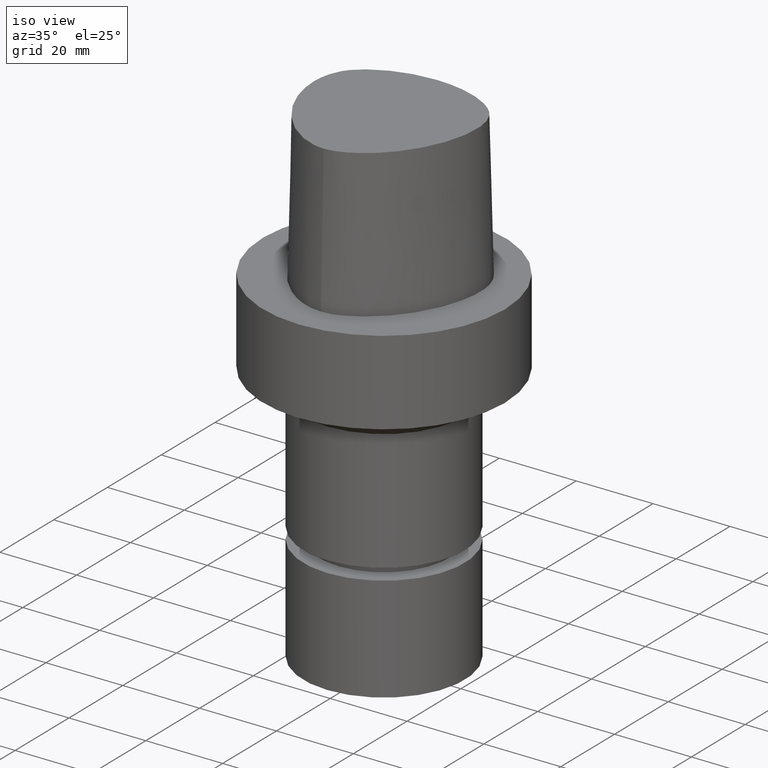
[diagram: clean part render]
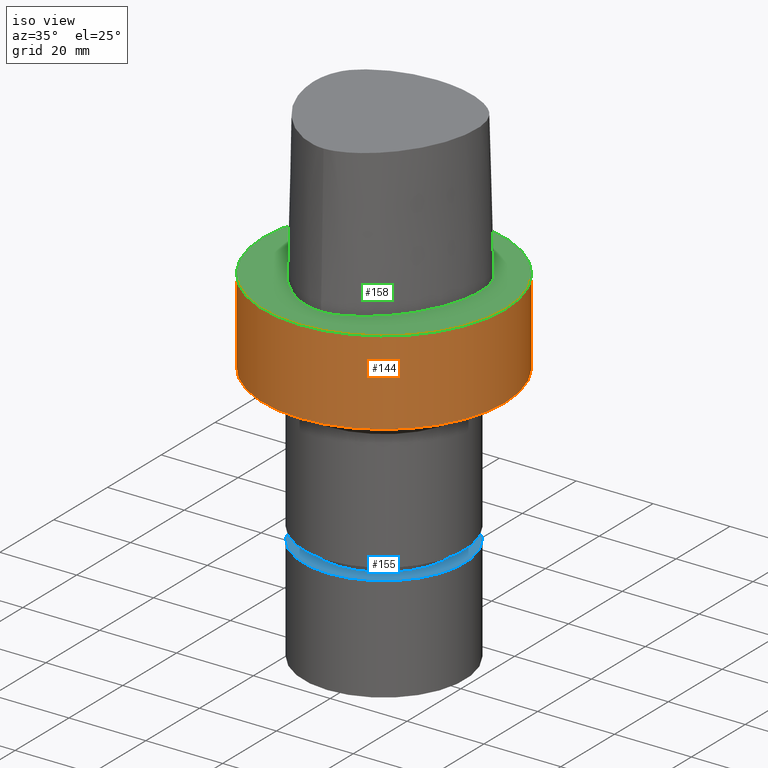
[diagram: same view with three faces highlighted in distinct colors, each labeled with its STEP entity id]
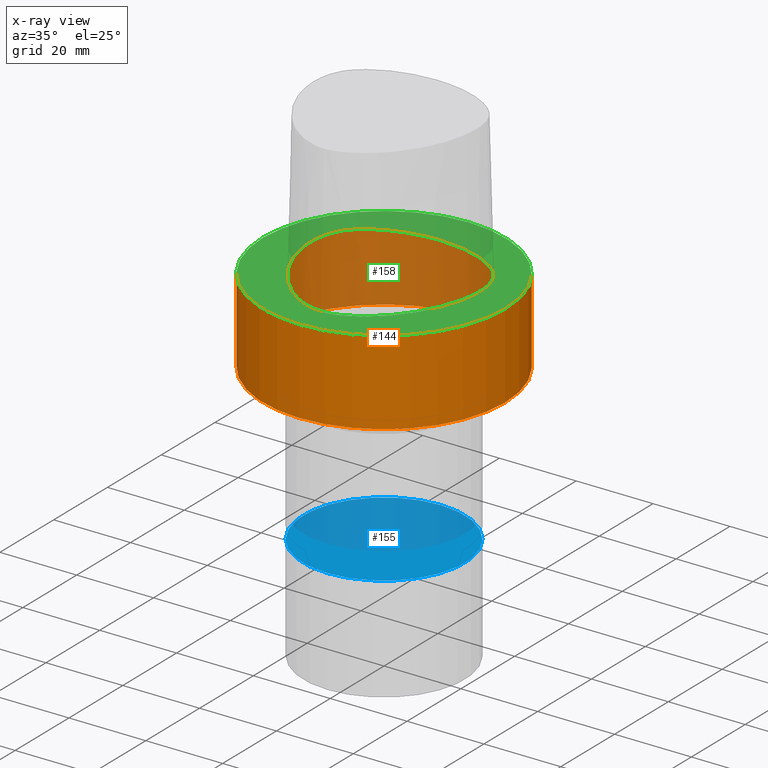
[diagram: x-ray of the same camera — body ghosted, the three highlighted faces saturated]
A machine part, iso view with three faces highlighted in distinct colors.
The next image is the same camera in x-ray (body ghosted, the three faces saturated) — at least one of them is partly hidden behind the body in this view.
Their STEP definitions:

[orange] entity #144 — the highlighted cylindrical surface (bore or boss wall) has radius 31.5 mm, axis along (0, 0, -1).
#113=EDGE_CURVE('Unnamed[1]',#253,#253,#254,.T.);
#144=ADVANCED_FACE('Unnamed[1]',(#294,#295),#296,.T.);
#168=EDGE_CURVE('Unnamed[1]',#330,#330,#331,.T.);
#253=VERTEX_POINT('',#597);
#254=CIRCLE('',#598,31.5);
#294=FACE_BOUND('',#683,.T.);
#295=FACE_BOUND('',#684,.T.);
#296=CYLINDRICAL_SURFACE('',#685,31.5);
#330=VERTEX_POINT('',#728);
#331=CIRCLE('',#729,31.5);
#597=CARTESIAN_POINT('',(1.34711147906212E-015,31.5,-22.0000000000006));
#598=AXIS2_PLACEMENT_3D('',#799,#800,#801);
#683=EDGE_LOOP('',(#837));
#684=EDGE_LOOP('',(#838));
#685=AXIS2_PLACEMENT_3D('',#839,#840,#841);
#728=CARTESIAN_POINT('',(-3.88267476788467E-031,31.5,3.85763741731416E-015));
#729=AXIS2_PLACEMENT_3D('',#878,#879,#880);
#799=CARTESIAN_POINT('',(1.34711147906212E-015,2.69422295812425E-015,-22.0000000000006));
#800=DIRECTION('',(6.12323399573677E-017,1.22464679914735E-016,-1.0));
#801=DIRECTION('',(-1.23259516440783E-032,1.0,1.22464679914735E-016));
#837=ORIENTED_EDGE('',*,*,#113,.F.);
#838=ORIENTED_EDGE('',*,*,#168,.T.);
#839=CARTESIAN_POINT('',(6.73555739531062E-016,1.34711147906212E-015,-11.0000000000003));
#840=DIRECTION('',(6.12323399573677E-017,1.22464679914735E-016,-1.0));
#841=DIRECTION('',(-1.23259516440783E-032,1.0,1.22464679914735E-016));
#878=CARTESIAN_POINT('',(0.0,0.0,0.0));
#879=DIRECTION('',(6.12323399573677E-017,1.22464679914735E-016,-1.0));
#880=DIRECTION('',(-1.23259516440783E-032,1.0,1.22464679914735E-016));

[blue] entity #155 — the highlighted planar face has unit normal (-0, -0, 1).
#92=EDGE_CURVE('Unnamed[1]',#222,#222,#223,.T.);
#155=ADVANCED_FACE('Unnamed[1]',(#310),#311,.T.);
#222=VERTEX_POINT('',#490);
#223=CIRCLE('',#491,21.0);
#310=FACE_OUTER_BOUND('',#702,.T.);
#311=PLANE('',#703);
#490=CARTESIAN_POINT('',(3.82702124733548E-015,21.0,-62.5));
#491=AXIS2_PLACEMENT_3D('',#764,#765,#766);
#702=EDGE_LOOP('',(#853));
#703=AXIS2_PLACEMENT_3D('',#854,#855,#856);
#764=CARTESIAN_POINT('',(3.82702124733548E-015,7.65404249467096E-015,-62.5));
#765=DIRECTION('',(6.12323399573677E-017,1.22464679914735E-016,-1.0));
#766=DIRECTION('',(-1.23259516440783E-032,1.0,1.22464679914735E-016));
#853=ORIENTED_EDGE('',*,*,#92,.F.);
#854=CARTESIAN_POINT('',(3.82702124733548E-015,10.5,-62.5));
#855=DIRECTION('',(-6.12323399573677E-017,-1.22464679914735E-016,1.0));
#856=DIRECTION('',(1.23259516440783E-032,-1.0,-1.22464679914735E-016));

[green] entity #158 — the highlighted planar face has unit normal (-0, -0, 1).
#90=EDGE_CURVE('Unnamed[1]',#218,#219,#220,.T.);
#117=EDGE_CURVE('Unnamed[1]',#238,#218,#259,.T.);
#131=EDGE_CURVE('Unnamed[1]',#219,#238,#279,.T.);
#158=ADVANCED_FACE('Unnamed[1]',(#314,#315),#316,.T.);
#168=EDGE_CURVE('Unnamed[1]',#330,#330,#331,.T.);
#218=VERTEX_POINT('',#469);
#219=VERTEX_POINT('',#470);
#220=B_SPLINE_CURVE_WITH_KNOTS('',3,(#471,#472,#473,#474,#475,#476,#477,#478,#479,#480,#481,#482,#483,#484,#485,#486,#487),.UNSPECIFIED.,.F.,.F.,(4,1,1,1,1,1,1,1,1,1,1,1,1,1,4),(-13.2302678617486,-12.816821991069,-12.4033761203893,-11.9899302497097,-11.57648437903,-11.1630385083504,-10.9563155730106,-10.7495926376707,-10.3361467669911,-9.92270089631145,-9.09580915495216,-8.26891741359287,-7.44202567223358,-7.02857980155394,-6.6151339308743),.UNSPECIFIED.);
#238=VERTEX_POINT('',#577);
#259=CIRCLE('',#605,0.949936168436318);
#279=B_SPLINE_CURVE_WITH_KNOTS('',3,(#632,#633,#634,#635,#636,#637,#638,#639,#640,#641,#642,#643,#644,#645,#646,#647,#648,#649),.UNSPECIFIED.,.F.,.F.,(4,1,1,1,1,1,1,1,1,2,1,1,1,1,4),(-6.6151339308743,-6.20168806019465,-5.78824218951501,-5.37479631883537,-4.96135044815572,-4.13445870679644,-3.30756696543715,-2.89412109475751,-2.48067522407786,-2.06722935339822,-1.65378348271857,-1.24033761203893,-0.826891741359287,-0.413445870679644,0.0),.UNSPECIFIED.);
#314=FACE_BOUND('',#707,.T.);
#315=FACE_OUTER_BOUND('',#708,.T.);
#316=PLANE('',#709);
#330=VERTEX_POINT('',#728);
#331=CIRCLE('',#729,31.5);
#469=CARTESIAN_POINT('',(0.044682985379347,20.6765087343109,1.61778115328528E-031));
#470=CARTESIAN_POINT('',(0.04359356758149,-23.4691235068931,7.78075697532443E-032));
#471=CARTESIAN_POINT('',(0.044682985379347,20.6765087343109,1.61778115328528E-031));
#472=CARTESIAN_POINT('',(1.42379272427753,20.6097915814392,8.62816615085482E-032));
#473=CARTESIAN_POINT('',(4.2230955003445,20.4837538303966,1.4791141972894E-031));
#474=CARTESIAN_POINT('',(8.47220762821777,19.6890432607088,9.86076131526265E-032));
#475=CARTESIAN_POINT('',(12.5141247708253,18.2434968480404,0.0));
#476=CARTESIAN_POINT('',(16.3038624872874,16.1734192182143,1.97215226305253E-031));
#477=CARTESIAN_POINT('',(19.1446913988473,13.7036723639434,-1.97215226305253E-031));
#478=CARTESIAN_POINT('',(20.7319894342149,11.1014620996188,0.0));
#479=CARTESIAN_POINT('',(21.7831756505763,8.28099229708081,-1.97215226305253E-031));
#480=CARTESIAN_POINT('',(22.2258240701438,4.60865440596506,0.0));
#481=CARTESIAN_POINT('',(21.7436130080666,-1.11326526354485,0.0));
#482=CARTESIAN_POINT('',(19.5519487660502,-7.95432366164584,0.0));
#483=CARTESIAN_POINT('',(14.9574167123838,-15.2089785567293,0.0));
#484=CARTESIAN_POINT('',(9.66840283021945,-20.0827414369705,-9.86076131526265E-032));
#485=CARTESIAN_POINT('',(4.51628650521788,-22.7946374572188,-9.86076131526265E-032));
#486=CARTESIAN_POINT('',(1.55867251738073,-23.4612972770043,-1.23259516440783E-032));
#487=CARTESIAN_POINT('',(0.04359356758149,-23.4691235068931,7.78075697532443E-032));
#577=CARTESIAN_POINT('',(-0.045171994691285,20.6766009553285,1.6755590516169E-031));
#605=AXIS2_PLACEMENT_3D('',#805,#806,#807);
#632=CARTESIAN_POINT('',(0.04359356758149,-23.4691235068931,7.78075697532443E-032));
#633=CARTESIAN_POINT('',(-1.4714994713963,-23.4767895315797,2.46519032881566E-032));
#634=CARTESIAN_POINT('',(-4.43923476371401,-22.821149804767,-4.93038065763132E-032));
#635=CARTESIAN_POINT('',(-8.35043230079961,-20.8000751253325,-9.86076131526265E-032));
#636=CARTESIAN_POINT('',(-11.744900222602,-18.1556117874078,-1.97215226305253E-031));
#637=CARTESIAN_POINT('',(-15.6989602501314,-14.0406306929147,-1.97215226305253E-031));
#638=CARTESIAN_POINT('',(-19.5352875070682,-8.00624990770787,1.97215226305253E-031));
#639=CARTESIAN_POINT('',(-21.7205626190491,-1.16081708945282,0.0));
#640=CARTESIAN_POINT('',(-22.2486616783342,4.54965558738736,0.0));
#641=CARTESIAN_POINT('',(-21.6646421256468,9.00229539124618,0.0));
#642=CARTESIAN_POINT('',(-20.3945635471922,11.7780544971003,0.0));
#643=CARTESIAN_POINT('',(-18.5925528034471,14.1980602922581,0.0));
#644=CARTESIAN_POINT('',(-16.3226584122258,16.1777748720707,0.0));
#645=CARTESIAN_POINT('',(-12.5076407874579,18.2524201541303,9.86076131526265E-032));
#646=CARTESIAN_POINT('',(-8.46776192107786,19.679114377952,9.86076131526265E-032));
#647=CARTESIAN_POINT('',(-4.23043497193604,20.487781597334,1.97215226305253E-031));
#648=CARTESIAN_POINT('',(-1.42313094248379,20.6127745766442,1.10933564796705E-031));
#649=CARTESIAN_POINT('',(-0.045171994691285,20.6766009553285,1.6755590516169E-031));
#707=EDGE_LOOP('',(#858,#859,#860));
#708=EDGE_LOOP('',(#861));
#709=AXIS2_PLACEMENT_3D('',#862,#863,#864);
#728=CARTESIAN_POINT('',(-3.88267476788467E-031,31.5,3.85763741731416E-015));
#729=AXIS2_PLACEMENT_3D('',#878,#879,#880);
#805=CARTESIAN_POINT('',(-0.001218547003662,19.7276821925089,1.97178046083078E-015));
#806=DIRECTION('',(6.12323399573677E-017,1.22464679914735E-016,-1.0));
#807=DIRECTION('',(-0.046269895968506,0.998928974816059,1.19500303158668E-016));
#858=ORIENTED_EDGE('',*,*,#90,.T.);
#859=ORIENTED_EDGE('',*,*,#131,.T.);
#860=ORIENTED_EDGE('',*,*,#117,.T.);
#861=ORIENTED_EDGE('',*,*,#168,.F.);
#862=CARTESIAN_POINT('',(-1.94133738394233E-031,15.75,1.92881870865708E-015));
#863=DIRECTION('',(-6.12323399573677E-017,-1.22464679914735E-016,1.0));
#864=DIRECTION('',(1.23259516440783E-032,-1.0,-1.22464679914735E-016));
#878=CARTESIAN_POINT('',(0.0,0.0,0.0));
#879=DIRECTION('',(6.12323399573677E-017,1.22464679914735E-016,-1.0));
#880=DIRECTION('',(-1.23259516440783E-032,1.0,1.22464679914735E-016));